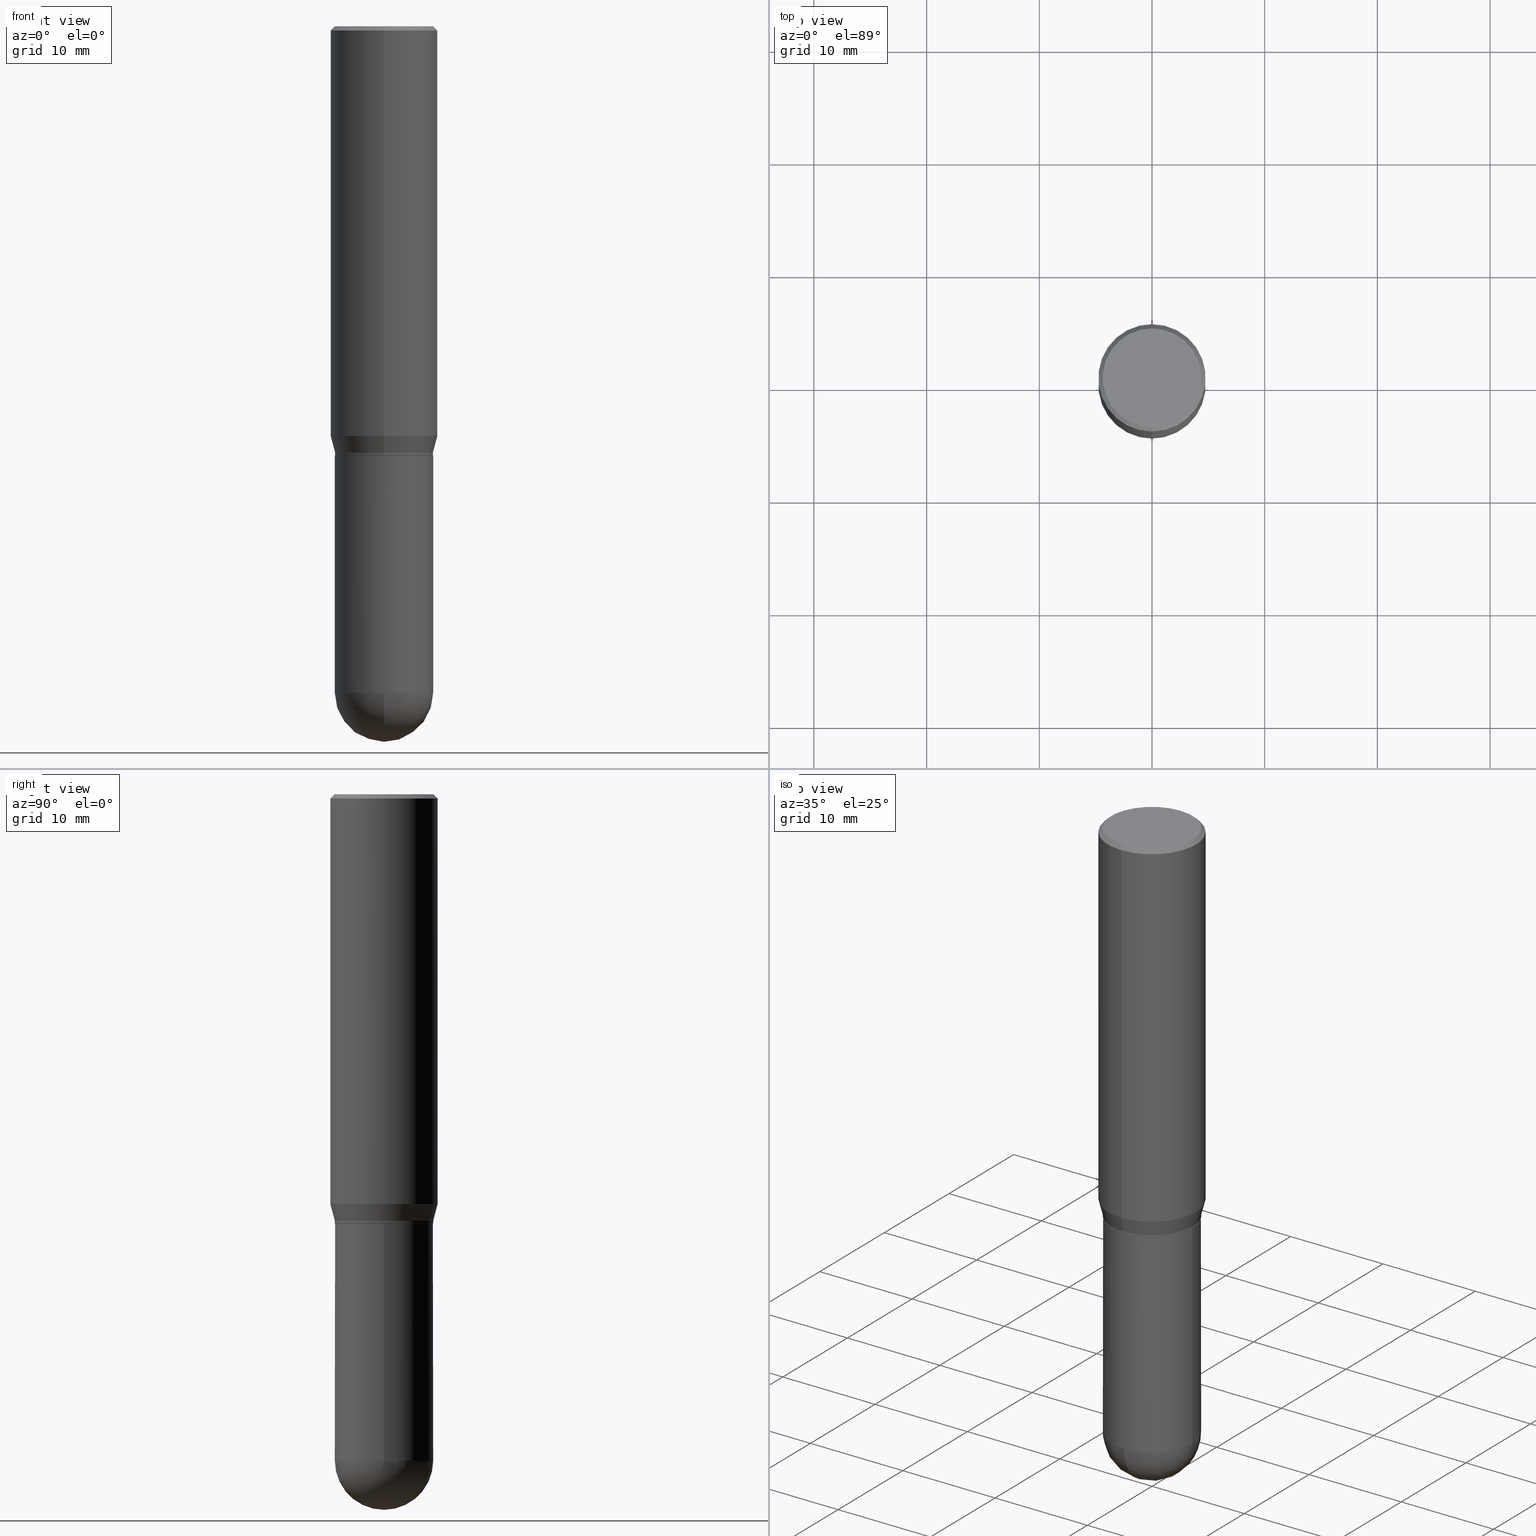
[diagram: canonical four-view strip — front | top / right | iso, engineering-drawing reading convention]
A machine part, canonical four-view strip (front | top / right | iso — engineering-drawing reading convention). The complete STEP part file that produces these views, byte-faithful:
ISO-10303-21;
HEADER;
FILE_DESCRIPTION (( 'STEP AP203' ),
    '1' );
FILE_NAME ('30492.STEP',
    '2024-03-08T15:26:57',
    ( '' ),
    ( '' ),
    'SwSTEP 2.0',
    'SolidWorks 2023',
    '' );
FILE_SCHEMA (( 'CONFIG_CONTROL_DESIGN' ));
ENDSEC;

DATA;
#1 = VERTEX_POINT ( 'NONE', #314 ) ;
#2 = CARTESIAN_POINT ( 'NONE',  ( 3.668027883406983202E-29, -5.237473084890521609E-15, -1.500000000000000222 ) ) ;
#3 = EDGE_CURVE ( 'NONE', #279, #236, #500, .T. ) ;
#4 = ORIENTED_EDGE ( 'NONE', *, *, #255, .T. ) ;
#5 = DIRECTION ( 'NONE',  ( -2.445351922271321948E-29, 3.491648723260347214E-15, 1.000000000000000000 ) ) ;
#6 = EDGE_LOOP ( 'NONE', ( #80, #427 ) ) ;
#7 = DIRECTION ( 'NONE',  ( -6.982962677686265922E-15, -1.000000000000000000, 3.178415350394723646E-15 ) ) ;
#8 = VECTOR ( 'NONE', #450, 39.37007874015748143 ) ;
#9 = ORIENTED_EDGE ( 'NONE', *, *, #419, .T. ) ;
#10 = CARTESIAN_POINT ( 'NONE',  ( 1.332267629550187651E-15, 0.1875000000000000278, -6.546841356113152012E-16 ) ) ;
#11 = DIRECTION ( 'NONE',  ( 6.982962677686266711E-15, 1.000000000000000000, 0.000000000000000000 ) ) ;
#12 = EDGE_LOOP ( 'NONE', ( #224, #335 ) ) ;
#13 = EDGE_CURVE ( 'NONE', #129, #71, #15, .T. ) ;
#14 = DIRECTION ( 'NONE',  ( 2.445351922271321948E-29, -3.491648723260347214E-15, -1.000000000000000000 ) ) ;
#15 = CIRCLE ( 'NONE', #289, 0.1718999999999998862 ) ;
#16 = AXIS2_PLACEMENT_3D ( 'NONE', #444, #405, #53 ) ;
#17 = DIRECTION ( 'NONE',  ( -2.445351922271321948E-29, 3.491648723260347608E-15, 1.000000000000000000 ) ) ;
#18 = LOCAL_TIME ( 10, 26, 57.00000000000000000, #372 ) ;
#19 = EDGE_CURVE ( 'NONE', #459, #285, #353, .T. ) ;
#20 = DIRECTION ( 'NONE',  ( 1.000000000000000000, -6.982962677686265922E-15, 4.876176775795935793E-29 ) ) ;
#21 = CARTESIAN_POINT ( 'NONE',  ( 3.668027883406999037E-31, -5.237473084890543500E-17, -0.01500000000000006710 ) ) ;
#22 = APPROVAL_PERSON_ORGANIZATION ( #466, #88, #62 ) ;
#23 = PERSON_AND_ORGANIZATION ( #347, #447 ) ;
#24 = EDGE_CURVE ( 'NONE', #396, #109, #495, .T. ) ;
#25 = PRODUCT ( '30492', '30492', '', ( #334 ) ) ;
#26 = PERSON_AND_ORGANIZATION ( #347, #447 ) ;
#27 = CARTESIAN_POINT ( 'NONE',  ( 5.693295927679617284E-29, -8.128517704960729139E-15, -2.328100000000000058 ) ) ;
#28 = ORIENTED_EDGE ( 'NONE', *, *, #419, .F. ) ;
#29 = DATE_TIME_ROLE ( 'classification_date' ) ;
#30 = CARTESIAN_POINT ( 'NONE',  ( 0.000000000000000000, 0.000000000000000000, 0.000000000000000000 ) ) ;
#31 = AXIS2_PLACEMENT_3D ( 'NONE', #60, #453, #290 ) ;
#32 = PERSON_AND_ORGANIZATION ( #347, #447 ) ;
#33 = ORIENTED_EDGE ( 'NONE', *, *, #398, .F. ) ;
#34 = CC_DESIGN_PERSON_AND_ORGANIZATION_ASSIGNMENT ( #428, #424, ( #355 ) ) ;
#35 = CARTESIAN_POINT ( 'NONE',  ( 1.200371284294326039E-15, 0.1718999999999918094, -2.328100000000000946 ) ) ;
#36 = CARTESIAN_POINT ( 'NONE',  ( -1.309305502066140101E-15, -0.1875000000000049960, -1.431780007401924903 ) ) ;
#37 = DIRECTION ( 'NONE',  ( -6.982962677686265922E-15, -1.000000000000000000, 3.178415350394723646E-15 ) ) ;
#38 = VECTOR ( 'NONE', #505, 39.37007874015748854 ) ;
#39 = ORIENTED_EDGE ( 'NONE', *, *, #142, .T. ) ;
#40 = FACE_OUTER_BOUND ( 'NONE', #512, .T. ) ;
#41 = EDGE_CURVE ( 'NONE', #71, #129, #327, .T. ) ;
#42 = EDGE_LOOP ( 'NONE', ( #426, #477, #393, #272 ) ) ;
#43 = ORIENTED_EDGE ( 'NONE', *, *, #24, .T. ) ;
#44 = FACE_OUTER_BOUND ( 'NONE', #482, .T. ) ;
#45 = CARTESIAN_POINT ( 'NONE',  ( 1.309305502066175600E-15, 0.1874999999999999445, -0.01500000000000072109 ) ) ;
#46 = ORIENTED_EDGE ( 'NONE', *, *, #409, .T. ) ;
#47 = CARTESIAN_POINT ( 'NONE',  ( 1.221422962771647501E-15, 0.1718999999999946682, -1.499500000000000721 ) ) ;
#48 = EDGE_LOOP ( 'NONE', ( #74, #89, #386, #9, #310 ) ) ;
#49 = EDGE_LOOP ( 'NONE', ( #399, #344, #511, #274 ) ) ;
#50 = CIRCLE ( 'NONE', #144, 0.1718999999999999140 ) ;
#51 = CYLINDRICAL_SURFACE ( 'NONE', #341, 0.1718999999999998862 ) ;
#52 = CARTESIAN_POINT ( 'NONE',  ( -1.196879802955389158E-15, -0.1714000000000052149, -1.499999999999999556 ) ) ;
#53 = DIRECTION ( 'NONE',  ( -6.982962677686265922E-15, -1.000000000000000000, 3.491648723260346819E-15 ) ) ;
#54 = DIRECTION ( 'NONE',  ( -2.445351922271321948E-29, 3.491648723260347608E-15, 1.000000000000000000 ) ) ;
#55 = ADVANCED_FACE ( 'NONE', ( #78 ), #436, .F. ) ;
#56 = CARTESIAN_POINT ( 'NONE',  ( -1.309305502066175008E-15, -0.1875000000000000278, 6.546841356113152012E-16 ) ) ;
#57 = MANIFOLD_SOLID_BREP ( 'Body-Move/Copy2[1]', #411 ) ;
#58 = AXIS2_PLACEMENT_3D ( 'NONE', #233, #273, #11 ) ;
#59 = ADVANCED_FACE ( 'NONE', ( #44 ), #280, .T. ) ;
#60 = CARTESIAN_POINT ( 'NONE',  ( 3.668027883406983202E-29, -5.237473084890521609E-15, -1.500000000000000222 ) ) ;
#61 = CARTESIAN_POINT ( 'NONE',  ( 0.1719000000000000250, -7.883241140906993293E-15, -2.328100000000000058 ) ) ;
#62 = APPROVAL_ROLE ( '' ) ;
#63 = APPROVAL_DATE_TIME ( #297, #154 ) ;
#64 = EDGE_CURVE ( 'NONE', #316, #346, #70, .T. ) ;
#65 = LINE ( 'NONE', #363, #77 ) ;
#66 = AXIS2_PLACEMENT_3D ( 'NONE', #360, #387, #379 ) ;
#67 = APPROVAL_STATUS ( 'not_yet_approved' ) ;
#68 = APPROVAL_ROLE ( '' ) ;
#69 = CLOSED_SHELL ( 'NONE', ( #506, #76, #263, #128, #98, #213, #337, #202, #110, #288, #322, #59 ) ) ;
#70 = CIRCLE ( 'NONE', #391, 0.1713999999999999690 ) ;
#71 = VERTEX_POINT ( 'NONE', #349 ) ;
#72 = EDGE_CURVE ( 'NONE', #236, #277, #79, .T. ) ;
#73 = DIRECTION ( 'NONE',  ( -2.445351922271321948E-29, 3.491648723260347214E-15, 1.000000000000000000 ) ) ;
#74 = ORIENTED_EDGE ( 'NONE', *, *, #104, .F. ) ;
#75 = DIRECTION ( 'NONE',  ( -6.982962677686265922E-15, -1.000000000000000000, 3.494488891895536035E-15 ) ) ;
#76 = ADVANCED_FACE ( 'NONE', ( #40 ), #508, .T. ) ;
#77 = VECTOR ( 'NONE', #17, 39.37007874015748143 ) ;
#78 = FACE_OUTER_BOUND ( 'NONE', #12, .T. ) ;
#79 = LINE ( 'NONE', #45, #479 ) ;
#80 = ORIENTED_EDGE ( 'NONE', *, *, #188, .T. ) ;
#81 = ORIENTED_EDGE ( 'NONE', *, *, #196, .F. ) ;
#82 = VERTEX_POINT ( 'NONE', #35 ) ;
#83 = ORIENTED_EDGE ( 'NONE', *, *, #3, .F. ) ;
#84 = DIRECTION ( 'NONE',  ( -6.982962677686265922E-15, -1.000000000000000000, 3.491648723260347608E-15 ) ) ;
#85 = DIRECTION ( 'NONE',  ( -6.982962677686265922E-15, -1.000000000000000000, 3.178415350394723252E-15 ) ) ;
#86 = DIRECTION ( 'NONE',  ( -2.445351922271321948E-29, 3.491648723260347608E-15, 1.000000000000000000 ) ) ;
#87 = ORIENTED_EDGE ( 'NONE', *, *, #188, .F. ) ;
#88 = APPROVAL ( #67, 'UNSPECIFIED' ) ;
#89 = ORIENTED_EDGE ( 'NONE', *, *, #284, .T. ) ;
#90 = AXIS2_PLACEMENT_3D ( 'NONE', #397, #235, #356 ) ;
#91 = DIRECTION ( 'NONE',  ( -2.445351922271321948E-29, 3.491648723260347214E-15, 1.000000000000000000 ) ) ;
#92 = LINE ( 'NONE', #485, #509 ) ;
#93 = EDGE_CURVE ( 'NONE', #129, #195, #303, .T. ) ;
#94 = DIRECTION ( 'NONE',  ( -2.445351922271321948E-29, 3.491648723260347214E-15, 1.000000000000000000 ) ) ;
#95 = LENGTH_MEASURE_WITH_UNIT ( LENGTH_MEASURE( 0.02539999999999999897 ), #281 );
#96 = AXIS2_PLACEMENT_3D ( 'NONE', #454, #245, #420 ) ;
#97 = DIRECTION ( 'NONE',  ( 6.982962677686265922E-15, 1.000000000000000000, -3.494488891895536035E-15 ) ) ;
#98 = ADVANCED_FACE ( 'NONE', ( #112 ), #261, .T. ) ;
#99 = PERSON_AND_ORGANIZATION_ROLE ( 'design_owner' ) ;
#100 = CIRCLE ( 'NONE', #58, 0.1718999999999999417 ) ;
#101 = EDGE_LOOP ( 'NONE', ( #146, #46, #228, #492 ) ) ;
#102 = APPROVAL_DATE_TIME ( #179, #88 ) ;
#103 = EDGE_LOOP ( 'NONE', ( #238, #87, #197, #432 ) ) ;
#104 = EDGE_CURVE ( 'NONE', #443, #137, #116, .T. ) ;
#105 = DIRECTION ( 'NONE',  ( -2.445468806185136597E-29, 3.491481338843145583E-15, 1.000000000000000000 ) ) ;
#106 = AXIS2_PLACEMENT_3D ( 'NONE', #230, #357, #268 ) ;
#107 = AXIS2_PLACEMENT_3D ( 'NONE', #177, #247, #168 ) ;
#108 = FACE_OUTER_BOUND ( 'NONE', #390, .T. ) ;
#109 = VERTEX_POINT ( 'NONE', #510 ) ;
#110 = ADVANCED_FACE ( 'NONE', ( #338 ), #345, .F. ) ;
#111 = DIRECTION ( 'NONE',  ( -2.445351922271321948E-29, 3.491648723260347214E-15, 1.000000000000000000 ) ) ;
#112 = FACE_OUTER_BOUND ( 'NONE', #191, .T. ) ;
#113 = ORIENTED_EDGE ( 'NONE', *, *, #104, .T. ) ;
#114 = ORIENTED_EDGE ( 'NONE', *, *, #227, .F. ) ;
#115 = ORIENTED_EDGE ( 'NONE', *, *, #255, .F. ) ;
#116 = LINE ( 'NONE', #434, #174 ) ;
#117 = APPROVAL_PERSON_ORGANIZATION ( #499, #154, #68 ) ;
#118 = ORIENTED_EDGE ( 'NONE', *, *, #123, .T. ) ;
#119 = CARTESIAN_POINT ( 'NONE',  ( 3.643574364184270459E-29, -5.202556597657919005E-15, -1.490000000000000213 ) ) ;
#120 = DIRECTION ( 'NONE',  ( 6.982962677686265922E-15, 1.000000000000000000, -3.178415350394722463E-15 ) ) ;
#121 = DIRECTION ( 'NONE',  ( -2.445351922271321387E-29, 3.491648723260347608E-15, 1.000000000000000000 ) ) ;
#122 = DIRECTION ( 'NONE',  ( -2.445351922271321948E-29, 3.491648723260347214E-15, 1.000000000000000000 ) ) ;
#123 = EDGE_CURVE ( 'NONE', #82, #443, #413, .T. ) ;
#124 = DIRECTION ( 'NONE',  ( -4.851104656540965064E-15, -0.7071067811865501263, -0.7071067811865449082 ) ) ;
#125 = CARTESIAN_POINT ( 'NONE',  ( -1.200371284294231968E-15, -0.1719000000000050765, -1.489999999999999769 ) ) ;
#126 = DIRECTION ( 'NONE',  ( 2.438088387897960049E-29, -3.491481338843145188E-15, -1.000000000000000000 ) ) ;
#127 = DIRECTION ( 'NONE',  ( -2.445468806185136597E-29, 3.491481338843145583E-15, 1.000000000000000000 ) ) ;
#128 = ADVANCED_FACE ( 'NONE', ( #150 ), #486, .T. ) ;
#129 = VERTEX_POINT ( 'NONE', #241 ) ;
#130 = FACE_OUTER_BOUND ( 'NONE', #49, .T. ) ;
#131 = AXIS2_PLACEMENT_3D ( 'NONE', #407, #91, #326 ) ;
#132 = CIRCLE ( 'NONE', #331, 0.1875000000000000278 ) ;
#133 = APPROVAL_DATE_TIME ( #425, #135 ) ;
#134 = CARTESIAN_POINT ( 'NONE',  ( 1.332267629550222558E-15, 0.1874999999999950318, -1.431780007401926014 ) ) ;
#135 = APPROVAL ( #293, 'UNSPECIFIED' ) ;
#136 = PERSON_AND_ORGANIZATION_ROLE ( 'creator' ) ;
#137 = VERTEX_POINT ( 'NONE', #452 ) ;
#138 = CALENDAR_DATE ( 2024, 8, 3 ) ;
#139 = AXIS2_PLACEMENT_3D ( 'NONE', #324, #249, #171 ) ;
#140 = CC_DESIGN_APPROVAL ( #88, ( #237 ) ) ;
#141 = CALENDAR_DATE ( 2024, 8, 3 ) ;
#142 = EDGE_CURVE ( 'NONE', #396, #129, #65, .T. ) ;
#143 = DIRECTION ( 'NONE',  ( 1.000000000000000000, -6.982962677686271444E-15, 0.000000000000000000 ) ) ;
#144 = AXIS2_PLACEMENT_3D ( 'NONE', #287, #328, #458 ) ;
#145 = AXIS2_PLACEMENT_3D ( 'NONE', #239, #127, #286 ) ;
#146 = ORIENTED_EDGE ( 'NONE', *, *, #398, .T. ) ;
#147 = ORIENTED_EDGE ( 'NONE', *, *, #64, .F. ) ;
#148 = CARTESIAN_POINT ( 'NONE',  ( 1.204561061900881047E-15, 0.1725000000000000144, -6.358629840937984976E-16 ) ) ;
#149 = DIRECTION ( 'NONE',  ( -2.445351922271321948E-29, 3.491648723260347214E-15, 1.000000000000000000 ) ) ;
#150 = FACE_OUTER_BOUND ( 'NONE', #101, .T. ) ;
#151 = DESIGN_CONTEXT ( 'detailed design', #465, 'design' ) ;
#152 = AXIS2_PLACEMENT_3D ( 'NONE', #307, #149, #75 ) ;
#153 = LOCAL_TIME ( 10, 26, 57.00000000000000000, #462 ) ;
#154 = APPROVAL ( #254, 'UNSPECIFIED' ) ;
#155 = UNCERTAINTY_MEASURE_WITH_UNIT (LENGTH_MEASURE( 1.000000000000000082E-05 ), #490, 'distance_accuracy_value', 'NONE');
#156 = EDGE_LOOP ( 'NONE', ( #400, #4, #423, #193 ) ) ;
#157 = ORIENTED_EDGE ( 'NONE', *, *, #317, .F. ) ;
#158 = CARTESIAN_POINT ( 'NONE',  ( 5.678595619168622984E-29, -8.149569383438070914E-15, -2.328100000000000058 ) ) ;
#159 = CARTESIAN_POINT ( 'NONE',  ( -1.309305502066174614E-15, -0.1875000000000000833, -0.01499999999999941137 ) ) ;
#160 = FACE_OUTER_BOUND ( 'NONE', #42, .T. ) ;
#161 = ORIENTED_EDGE ( 'NONE', *, *, #64, .T. ) ;
#162 = CARTESIAN_POINT ( 'NONE',  ( -1.196879802955389158E-15, -0.1714000000000052149, -1.499999999999999556 ) ) ;
#163 = ORIENTED_EDGE ( 'NONE', *, *, #342, .T. ) ;
#164 = DIRECTION ( 'NONE',  ( 1.000000000000000000, -6.982962677686265922E-15, 4.876176775795935793E-29 ) ) ;
#165 = AXIS2_PLACEMENT_3D ( 'NONE', #176, #389, #120 ) ;
#166 = DIRECTION ( 'NONE',  ( -2.445468806185136597E-29, 3.491481338843145583E-15, 1.000000000000000000 ) ) ;
#167 = CC_DESIGN_SECURITY_CLASSIFICATION ( #237, ( #355 ) ) ;
#168 = DIRECTION ( 'NONE',  ( 6.982962677686265922E-15, 1.000000000000000000, -3.178415350394722463E-15 ) ) ;
#169 = ORIENTED_EDGE ( 'NONE', *, *, #41, .F. ) ;
#170 = APPLICATION_PROTOCOL_DEFINITION ( 'international standard', 'config_control_design', 1994, #378 ) ;
#171 = DIRECTION ( 'NONE',  ( -6.982962677686265922E-15, -1.000000000000000000, 3.178415350394723646E-15 ) ) ;
#172 = CARTESIAN_POINT ( 'NONE',  ( 5.693295927679617284E-29, -8.128517704960729139E-15, -2.328100000000000058 ) ) ;
#173 = DIRECTION ( 'NONE',  ( 2.445351922271321948E-29, -3.491648723260347214E-15, -1.000000000000000000 ) ) ;
#174 = VECTOR ( 'NONE', #385, 39.37007874015748143 ) ;
#175 = CC_DESIGN_PERSON_AND_ORGANIZATION_ASSIGNMENT ( #217, #294, ( #237 ) ) ;
#176 = CARTESIAN_POINT ( 'NONE',  ( 5.678595619168622984E-29, -8.149569383438070914E-15, -2.328100000000000058 ) ) ;
#177 = CARTESIAN_POINT ( 'NONE',  ( 5.678595619168622984E-29, -8.149569383438070914E-15, -2.328100000000000058 ) ) ;
#178 = DATE_AND_TIME ( #417, #438 ) ;
#179 = DATE_AND_TIME ( #212, #257 ) ;
#180 = CARTESIAN_POINT ( 'NONE',  ( 1.219646605932247841E-15, 0.1713999999999947510, -1.500000000000000666 ) ) ;
#181 = DIRECTION ( 'NONE',  ( -2.445468806185136597E-29, 3.491481338843145583E-15, 1.000000000000000000 ) ) ;
#182 = ADVANCED_FACE ( 'NONE', ( #130 ), #250, .T. ) ;
#183 = CIRCLE ( 'NONE', #152, 0.1875000000000000278 ) ;
#184 = CARTESIAN_POINT ( 'NONE',  ( -1.286343374582161576E-15, -0.1875000000000000833, -0.01499999999999941137 ) ) ;
#185 = EDGE_LOOP ( 'NONE', ( #118, #113, #473, #28, #441 ) ) ;
#186 = ORIENTED_EDGE ( 'NONE', *, *, #317, .T. ) ;
#187 = CARTESIAN_POINT ( 'NONE',  ( 5.693295927679617284E-29, -8.128517704960729139E-15, -2.328100000000000058 ) ) ;
#188 = EDGE_CURVE ( 'NONE', #236, #279, #256, .T. ) ;
#189 = AXIS2_PLACEMENT_3D ( 'NONE', #264, #73, #301 ) ;
#190 = AXIS2_PLACEMENT_3D ( 'NONE', #323, #442, #240 ) ;
#191 = EDGE_LOOP ( 'NONE', ( #252, #474, #33, #291 ) ) ;
#192 = DIRECTION ( 'NONE',  ( -6.982962677686266711E-15, -1.000000000000000000, 3.187687273820611169E-15 ) ) ;
#193 = ORIENTED_EDGE ( 'NONE', *, *, #24, .F. ) ;
#194 = ORIENTED_EDGE ( 'NONE', *, *, #409, .F. ) ;
#195 = VERTEX_POINT ( 'NONE', #134 ) ;
#196 = EDGE_CURVE ( 'NONE', #109, #71, #412, .T. ) ;
#197 = ORIENTED_EDGE ( 'NONE', *, *, #72, .T. ) ;
#198 = LINE ( 'NONE', #125, #282 ) ;
#199 = DIRECTION ( 'NONE',  ( -6.982962677686266711E-15, -1.000000000000000000, 3.491648723260346425E-15 ) ) ;
#200 = DIRECTION ( 'NONE',  ( -2.445468806185136597E-29, 3.491481338843145583E-15, 1.000000000000000000 ) ) ;
#201 = CARTESIAN_POINT ( 'NONE',  ( 3.668027883406983202E-29, -5.237473084890521609E-15, -1.500000000000000222 ) ) ;
#202 = ADVANCED_FACE ( 'NONE', ( #205 ), #366, .T. ) ;
#203 = DIRECTION ( 'NONE',  ( -6.982962677686265922E-15, -1.000000000000000000, 3.491648723260346819E-15 ) ) ;
#204 = AXIS2_PLACEMENT_3D ( 'NONE', #219, #464, #384 ) ;
#205 = FACE_OUTER_BOUND ( 'NONE', #103, .T. ) ;
#206 = LINE ( 'NONE', #10, #414 ) ;
#207 = CC_DESIGN_PERSON_AND_ORGANIZATION_ASSIGNMENT ( #23, #136, ( #355 ) ) ;
#208 = APPLICATION_PROTOCOL_DEFINITION ( 'international standard', 'config_control_design', 1994, #465 ) ;
#209 = PERSON_AND_ORGANIZATION_ROLE ( 'creator' ) ;
#210 = AXIS2_PLACEMENT_3D ( 'NONE', #2, #121, #84 ) ;
#211 = ORIENTED_EDGE ( 'NONE', *, *, #494, .T. ) ;
#212 = CALENDAR_DATE ( 2024, 8, 3 ) ;
#213 = ADVANCED_FACE ( 'NONE', ( #214 ), #402, .T. ) ;
#214 = FACE_OUTER_BOUND ( 'NONE', #315, .T. ) ;
#215 = COORDINATED_UNIVERSAL_TIME_OFFSET ( 5, 0, .BEHIND. ) ;
#216 = CYLINDRICAL_SURFACE ( 'NONE', #501, 0.1875000000000000278 ) ;
#217 = PERSON_AND_ORGANIZATION ( #347, #447 ) ;
#218 = AXIS2_PLACEMENT_3D ( 'NONE', #481, #472, #192 ) ;
#219 = CARTESIAN_POINT ( 'NONE',  ( 3.668027883406983202E-29, -5.237473084890521609E-15, -1.500000000000000222 ) ) ;
#220 = CIRCLE ( 'NONE', #145, 0.1718999999999999695 ) ;
#221 = DIRECTION ( 'NONE',  ( 4.937700262164548831E-15, 0.7071067811865452413, -0.7071067811865497932 ) ) ;
#222 = MANIFOLD_SOLID_BREP ( 'Body-Move/Copy2[2]', #69 ) ;
#223 = EDGE_CURVE ( 'NONE', #483, #82, #244, .T. ) ;
#224 = ORIENTED_EDGE ( 'NONE', *, *, #470, .T. ) ;
#225 = AXIS2_PLACEMENT_3D ( 'NONE', #408, #166, #164 ) ;
#226 = CARTESIAN_POINT ( 'NONE',  ( 1.641006194341885501E-45, -2.343146248665151723E-31, -6.710715866277708066E-17 ) ) ;
#227 = EDGE_CURVE ( 'NONE', #109, #396, #50, .T. ) ;
#228 = ORIENTED_EDGE ( 'NONE', *, *, #342, .F. ) ;
#229 = ORIENTED_EDGE ( 'NONE', *, *, #142, .F. ) ;
#230 = CARTESIAN_POINT ( 'NONE',  ( 3.643574364184270459E-29, -5.202556597657919005E-15, -1.490000000000000213 ) ) ;
#231 = CYLINDRICAL_SURFACE ( 'NONE', #225, 0.1719000000000000250 ) ;
#232 = AXIS2_PLACEMENT_3D ( 'NONE', #484, #126, #394 ) ;
#233 = CARTESIAN_POINT ( 'NONE',  ( 5.678595619168622984E-29, -8.149569383438070914E-15, -2.328100000000000058 ) ) ;
#234 = AXIS2_PLACEMENT_3D ( 'NONE', #361, #14, #97 ) ;
#235 = DIRECTION ( 'NONE',  ( -2.445468806185136597E-29, 3.491481338843145583E-15, 1.000000000000000000 ) ) ;
#236 = VERTEX_POINT ( 'NONE', #422 ) ;
#237 = SECURITY_CLASSIFICATION ( '', '', #296 ) ;
#238 = ORIENTED_EDGE ( 'NONE', *, *, #359, .F. ) ;
#239 = CARTESIAN_POINT ( 'NONE',  ( 3.668203209277704895E-29, -5.237222008264718177E-15, -1.500000000000000222 ) ) ;
#240 = DIRECTION ( 'NONE',  ( 1.000000000000000000, -6.982962677686268288E-15, 0.000000000000000000 ) ) ;
#241 = CARTESIAN_POINT ( 'NONE',  ( 1.276845296160934931E-15, 0.1718999999999946959, -1.490000000000000879 ) ) ;
#242 = DIRECTION ( 'NONE',  ( -2.445351922271321948E-29, 3.491648723260347214E-15, 1.000000000000000000 ) ) ;
#243 = DIRECTION ( 'NONE',  ( -6.982962677686266711E-15, -1.000000000000000000, 3.491648723260346425E-15 ) ) ;
#244 = CIRCLE ( 'NONE', #364, 0.1719000000000000250 ) ;
#245 = DIRECTION ( 'NONE',  ( 0.000000000000000000, 0.000000000000000000, 1.000000000000000000 ) ) ;
#246 = CARTESIAN_POINT ( 'NONE',  ( 3.501205993369945932E-29, -4.999272834834623163E-15, -1.431780007401925348 ) ) ;
#247 = DIRECTION ( 'NONE',  ( -1.000000000000000000, 6.982962677686265922E-15, -4.883557194083112340E-29 ) ) ;
#248 = PRODUCT_DEFINITION ( 'UNKNOWN', '', #355, #151 ) ;
#249 = DIRECTION ( 'NONE',  ( -2.445351922271321948E-29, 3.491648723260347214E-15, 1.000000000000000000 ) ) ;
#250 = SPHERICAL_SURFACE ( 'NONE', #107, 0.1718999999999999417 ) ;
#251 = CALENDAR_DATE ( 2024, 8, 3 ) ;
#252 = ORIENTED_EDGE ( 'NONE', *, *, #41, .T. ) ;
#253 = DIMENSIONAL_EXPONENTS ( 1.000000000000000000, 0.000000000000000000, 0.000000000000000000, 0.000000000000000000, 0.000000000000000000, 0.000000000000000000, 0.000000000000000000 ) ;
#254 = APPROVAL_STATUS ( 'not_yet_approved' ) ;
#255 = EDGE_CURVE ( 'NONE', #346, #316, #330, .T. ) ;
#256 = CIRCLE ( 'NONE', #320, 0.1725000000000000144 ) ;
#257 = LOCAL_TIME ( 10, 26, 57.00000000000000000, #503 ) ;
#258 = ORIENTED_EDGE ( 'NONE', *, *, #13, .T. ) ;
#259 = FACE_OUTER_BOUND ( 'NONE', #156, .T. ) ;
#260 = AXIS2_PLACEMENT_3D ( 'NONE', #265, #471, #85 ) ;
#261 = CONICAL_SURFACE ( 'NONE', #371, 0.1718999999999998862, 0.2617993877991499629 ) ;
#262 = CC_DESIGN_APPROVAL ( #154, ( #248 ) ) ;
#263 = ADVANCED_FACE ( 'NONE', ( #370 ), #382, .T. ) ;
#264 = CARTESIAN_POINT ( 'NONE',  ( 3.668027883406999037E-31, -5.237473084890543500E-17, -0.01500000000000006710 ) ) ;
#265 = CARTESIAN_POINT ( 'NONE',  ( 3.666805207445848322E-29, -5.235727260528891085E-15, -1.499500000000000277 ) ) ;
#266 = EDGE_LOOP ( 'NONE', ( #435, #39, #169, #81 ) ) ;
#267 = ORIENTED_EDGE ( 'NONE', *, *, #308, .T. ) ;
#268 = DIRECTION ( 'NONE',  ( -6.982962677686265922E-15, -1.000000000000000000, 3.178415350394723646E-15 ) ) ;
#269 = EDGE_CURVE ( 'NONE', #316, #109, #507, .T. ) ;
#270 = DIRECTION ( 'NONE',  ( 2.445351922271321387E-29, -3.491648723260347608E-15, -1.000000000000000000 ) ) ;
#271 = CIRCLE ( 'NONE', #189, 0.1875000000000000278 ) ;
#272 = ORIENTED_EDGE ( 'NONE', *, *, #440, .F. ) ;
#273 = DIRECTION ( 'NONE',  ( 1.000000000000000000, -6.982962677686265922E-15, 4.883557194083112340E-29 ) ) ;
#274 = ORIENTED_EDGE ( 'NONE', *, *, #123, .F. ) ;
#275 = DIRECTION ( 'NONE',  ( -1.000000000000000000, 7.105427357601001070E-15, -4.926315508542082329E-29 ) ) ;
#276 = DIRECTION ( 'NONE',  ( 5.024295867788231995E-15, 0.7071067811865739960, 0.7071067811865208164 ) ) ;
#277 = VERTEX_POINT ( 'NONE', #318 ) ;
#278 = DIRECTION ( 'NONE',  ( -1.807323732225328167E-15, -0.2588190451025179084, 0.9659258262890690894 ) ) ;
#279 = VERTEX_POINT ( 'NONE', #448 ) ;
#280 = CYLINDRICAL_SURFACE ( 'NONE', #16, 0.1718999999999998862 ) ;
#281 =( LENGTH_UNIT ( ) NAMED_UNIT ( * ) SI_UNIT ( $, .METRE. ) );
#282 = VECTOR ( 'NONE', #278, 39.37007874015748143 ) ;
#283 = PLANE ( 'NONE',  #210 ) ;
#284 = EDGE_CURVE ( 'NONE', #443, #285, #437, .T. ) ;
#285 = VERTEX_POINT ( 'NONE', #476 ) ;
#286 = DIRECTION ( 'NONE',  ( 1.000000000000000000, -6.982962677686268288E-15, 0.000000000000000000 ) ) ;
#287 = CARTESIAN_POINT ( 'NONE',  ( 3.666805207445848322E-29, -5.235727260528891085E-15, -1.499500000000000277 ) ) ;
#288 = ADVANCED_FACE ( 'NONE', ( #313 ), #283, .F. ) ;
#289 = AXIS2_PLACEMENT_3D ( 'NONE', #352, #5, #7 ) ;
#290 = DIRECTION ( 'NONE',  ( -6.982962677686266711E-15, -1.000000000000000000, 3.187687273820611169E-15 ) ) ;
#291 = ORIENTED_EDGE ( 'NONE', *, *, #308, .F. ) ;
#292 = AXIS2_PLACEMENT_3D ( 'NONE', #172, #200, #415 ) ;
#293 = APPROVAL_STATUS ( 'not_yet_approved' ) ;
#294 = PERSON_AND_ORGANIZATION_ROLE ( 'classification_officer' ) ;
#295 = PRODUCT_RELATED_PRODUCT_CATEGORY ( 'detail', '', ( #25 ) ) ;
#296 = SECURITY_CLASSIFICATION_LEVEL ( 'unclassified' ) ;
#297 = DATE_AND_TIME ( #251, #18 ) ;
#298 = LOCAL_TIME ( 10, 26, 57.00000000000000000, #375 ) ;
#299 = DIRECTION ( 'NONE',  ( -2.445351922271321948E-29, 3.491648723260347214E-15, 1.000000000000000000 ) ) ;
#300 = APPROVAL_ROLE ( '' ) ;
#301 = DIRECTION ( 'NONE',  ( -6.982962677686265922E-15, -1.000000000000000000, 3.494488891895536035E-15 ) ) ;
#302 = CC_DESIGN_PERSON_AND_ORGANIZATION_ASSIGNMENT ( #332, #99, ( #25 ) ) ;
#303 = LINE ( 'NONE', #430, #38 ) ;
#304 = ORIENTED_EDGE ( 'NONE', *, *, #359, .T. ) ;
#305 = AXIS2_PLACEMENT_3D ( 'NONE', #21, #173, #504 ) ;
#306 = DIRECTION ( 'NONE',  ( -6.982962677686266711E-15, -1.000000000000000000, 3.187687273820611169E-15 ) ) ;
#307 = CARTESIAN_POINT ( 'NONE',  ( 3.668027883406999037E-31, -5.237473084890543500E-17, -0.01500000000000006710 ) ) ;
#308 = EDGE_CURVE ( 'NONE', #71, #395, #198, .T. ) ;
#309 = ORIENTED_EDGE ( 'NONE', *, *, #269, .F. ) ;
#310 = ORIENTED_EDGE ( 'NONE', *, *, #463, .F. ) ;
#311 = ORIENTED_EDGE ( 'NONE', *, *, #72, .F. ) ;
#312 = VECTOR ( 'NONE', #496, 39.37007874015748143 ) ;
#313 = FACE_OUTER_BOUND ( 'NONE', #374, .T. ) ;
#314 = CARTESIAN_POINT ( 'NONE',  ( 0.1718999999999999695, -6.437593292558987418E-15, -1.500000000000000222 ) ) ;
#315 = EDGE_LOOP ( 'NONE', ( #329, #258, #267, #157 ) ) ;
#316 = VERTEX_POINT ( 'NONE', #52 ) ;
#317 = EDGE_CURVE ( 'NONE', #195, #395, #456, .T. ) ;
#318 = CARTESIAN_POINT ( 'NONE',  ( 1.332267629550222953E-15, 0.1874999999999999445, -0.01500000000000072109 ) ) ;
#319 = CARTESIAN_POINT ( 'NONE',  ( 0.000000000000000000, 0.000000000000000000, 0.000000000000000000 ) ) ;
#320 = AXIS2_PLACEMENT_3D ( 'NONE', #497, #94, #243 ) ;
#321 = CARTESIAN_POINT ( 'NONE',  ( 0.000000000000000000, 0.000000000000000000, 0.000000000000000000 ) ) ;
#322 = ADVANCED_FACE ( 'NONE', ( #259 ), #340, .T. ) ;
#323 = CARTESIAN_POINT ( 'NONE',  ( 3.668203209277704895E-29, -5.237222008264718177E-15, -1.500000000000000222 ) ) ;
#324 = CARTESIAN_POINT ( 'NONE',  ( 3.643574364184270459E-29, -5.202556597657919005E-15, -1.490000000000000213 ) ) ;
#325 = DIRECTION ( 'NONE',  ( -2.445468806185136597E-29, 3.491481338843145583E-15, 1.000000000000000000 ) ) ;
#326 = DIRECTION ( 'NONE',  ( -6.982962677686265922E-15, -1.000000000000000000, 3.491648723260347214E-15 ) ) ;
#327 = CIRCLE ( 'NONE', #106, 0.1718999999999998862 ) ;
#328 = DIRECTION ( 'NONE',  ( -2.445351922271321948E-29, 3.491648723260347214E-15, 1.000000000000000000 ) ) ;
#329 = ORIENTED_EDGE ( 'NONE', *, *, #93, .F. ) ;
#330 = CIRCLE ( 'NONE', #31, 0.1713999999999999690 ) ;
#331 = AXIS2_PLACEMENT_3D ( 'NONE', #246, #376, #362 ) ;
#332 = PERSON_AND_ORGANIZATION ( #347, #447 ) ;
#333 = DIRECTION ( 'NONE',  ( 1.000000000000000000, -6.982962677686271444E-15, 0.000000000000000000 ) ) ;
#334 = MECHANICAL_CONTEXT ( 'NONE', #378, 'mechanical' ) ;
#335 = ORIENTED_EDGE ( 'NONE', *, *, #463, .T. ) ;
#336 = AXIS2_PLACEMENT_3D ( 'NONE', #148, #270, #339 ) ;
#337 = ADVANCED_FACE ( 'NONE', ( #108 ), #216, .T. ) ;
#338 = FACE_OUTER_BOUND ( 'NONE', #6, .T. ) ;
#339 = DIRECTION ( 'NONE',  ( 6.982962677686265922E-15, 1.000000000000000000, -3.491648723260347608E-15 ) ) ;
#340 = CONICAL_SURFACE ( 'NONE', #204, 0.1713999999999999690, 0.7853981633974824739 ) ;
#341 = AXIS2_PLACEMENT_3D ( 'NONE', #321, #242, #203 ) ;
#342 = EDGE_CURVE ( 'NONE', #478, #277, #271, .T. ) ;
#343 = ORIENTED_EDGE ( 'NONE', *, *, #380, .F. ) ;
#344 = ORIENTED_EDGE ( 'NONE', *, *, #19, .T. ) ;
#345 = PLANE ( 'NONE',  #336 ) ;
#346 = VERTEX_POINT ( 'NONE', #180 ) ;
#347 = PERSON ( 'UNSPECIFIED', 'UNSPECIFIED', 'UNSPECIFIED', ('UNSPECIFIED'), ('UNSPECIFIED'), ('UNSPECIFIED') ) ;
#348 = DIRECTION ( 'NONE',  ( -7.105427357601001070E-15, -1.000000000000000000, 0.000000000000000000 ) ) ;
#349 = CARTESIAN_POINT ( 'NONE',  ( -1.200371284294231968E-15, -0.1719000000000050765, -1.489999999999999769 ) ) ;
#350 = DIRECTION ( 'NONE',  ( -4.937700262164715281E-15, -0.7071067811865691111, 0.7071067811865257013 ) ) ;
#351 = ORIENTED_EDGE ( 'NONE', *, *, #480, .T. ) ;
#352 = CARTESIAN_POINT ( 'NONE',  ( 3.643574364184270459E-29, -5.202556597657919005E-15, -1.490000000000000213 ) ) ;
#353 = CIRCLE ( 'NONE', #468, 0.1718999999999999417 ) ;
#354 = AXIS2_PLACEMENT_3D ( 'NONE', #187, #105, #143 ) ;
#355 = PRODUCT_DEFINITION_FORMATION_WITH_SPECIFIED_SOURCE ( 'ANY', '', #25, .NOT_KNOWN. ) ;
#356 = DIRECTION ( 'NONE',  ( 1.000000000000000000, -6.982962677686271444E-15, 0.000000000000000000 ) ) ;
#357 = DIRECTION ( 'NONE',  ( -2.445351922271321948E-29, 3.491648723260347214E-15, 1.000000000000000000 ) ) ;
#358 = FACE_OUTER_BOUND ( 'NONE', #185, .T. ) ;
#359 = EDGE_CURVE ( 'NONE', #279, #478, #467, .T. ) ;
#360 = CARTESIAN_POINT ( 'NONE',  ( 3.501205993369945932E-29, -4.999272834834623163E-15, -1.431780007401925348 ) ) ;
#361 = CARTESIAN_POINT ( 'NONE',  ( 3.668027883406999037E-31, -5.237473084890543500E-17, -0.01500000000000006710 ) ) ;
#362 = DIRECTION ( 'NONE',  ( -6.982962677686265922E-15, -1.000000000000000000, 2.913971193241880372E-15 ) ) ;
#363 = CARTESIAN_POINT ( 'NONE',  ( 1.221422962771611214E-15, 0.1718999999999998862, -6.002144155284532253E-16 ) ) ;
#364 = AXIS2_PLACEMENT_3D ( 'NONE', #27, #181, #333 ) ;
#365 = EDGE_CURVE ( 'NONE', #459, #82, #100, .T. ) ;
#366 = CONICAL_SURFACE ( 'NONE', #234, 0.1875000000000000278, 0.7853981633974485010 ) ;
#367 = VECTOR ( 'NONE', #54, 39.37007874015748143 ) ;
#368 =( NAMED_UNIT ( * ) PLANE_ANGLE_UNIT ( ) SI_UNIT ( $, .RADIAN. ) );
#369 = LINE ( 'NONE', #406, #8 ) ;
#370 = FACE_OUTER_BOUND ( 'NONE', #404, .T. ) ;
#371 = AXIS2_PLACEMENT_3D ( 'NONE', #119, #431, #37 ) ;
#372 = COORDINATED_UNIVERSAL_TIME_OFFSET ( 5, 0, .BEHIND. ) ;
#373 = ADVANCED_FACE ( 'NONE', ( #160 ), #418, .T. ) ;
#374 = EDGE_LOOP ( 'NONE', ( #147, #115 ) ) ;
#375 = COORDINATED_UNIVERSAL_TIME_OFFSET ( 5, 0, .BEHIND. ) ;
#376 = DIRECTION ( 'NONE',  ( -2.445351922271321948E-29, 3.491648723260347214E-15, 1.000000000000000000 ) ) ;
#377 = DIRECTION ( 'NONE',  ( -6.982962677686265922E-15, -1.000000000000000000, 3.491648723260347214E-15 ) ) ;
#378 = APPLICATION_CONTEXT ( 'configuration controlled 3d designs of mechanical parts and assemblies' ) ;
#379 = DIRECTION ( 'NONE',  ( -6.982962677686265922E-15, -1.000000000000000000, 2.913971193241880372E-15 ) ) ;
#380 = EDGE_CURVE ( 'NONE', #277, #478, #183, .T. ) ;
#381 = SHAPE_DEFINITION_REPRESENTATION ( #429, #421 ) ;
#382 = CONICAL_SURFACE ( 'NONE', #305, 0.1875000000000000278, 0.7853981633974485010 ) ;
#383 = APPROVAL_PERSON_ORGANIZATION ( #32, #135, #300 ) ;
#384 = DIRECTION ( 'NONE',  ( -6.982962677686266711E-15, -1.000000000000000000, 3.187687273820611169E-15 ) ) ;
#385 = DIRECTION ( 'NONE',  ( -2.445468806185136877E-29, 3.491481338843145188E-15, 1.000000000000000000 ) ) ;
#386 = ORIENTED_EDGE ( 'NONE', *, *, #440, .T. ) ;
#387 = DIRECTION ( 'NONE',  ( -2.445351922271321948E-29, 3.491648723260347214E-15, 1.000000000000000000 ) ) ;
#388 = CC_DESIGN_DATE_AND_TIME_ASSIGNMENT ( #178, #498, ( #248 ) ) ;
#389 = DIRECTION ( 'NONE',  ( -1.000000000000000000, 6.982962677686265922E-15, -4.883557194083112340E-29 ) ) ;
#390 = EDGE_LOOP ( 'NONE', ( #194, #186, #211, #343 ) ) ;
#391 = AXIS2_PLACEMENT_3D ( 'NONE', #201, #111, #306 ) ;
#392 = CIRCLE ( 'NONE', #292, 0.1719000000000000250 ) ;
#393 = ORIENTED_EDGE ( 'NONE', *, *, #223, .F. ) ;
#394 = DIRECTION ( 'NONE',  ( -1.000000000000000000, 6.982962677686265922E-15, -4.876176775795935793E-29 ) ) ;
#395 = VERTEX_POINT ( 'NONE', #36 ) ;
#396 = VERTEX_POINT ( 'NONE', #47 ) ;
#397 = CARTESIAN_POINT ( 'NONE',  ( 5.693295927679617284E-29, -8.128517704960729139E-15, -2.328100000000000058 ) ) ;
#398 = EDGE_CURVE ( 'NONE', #395, #195, #132, .T. ) ;
#399 = ORIENTED_EDGE ( 'NONE', *, *, #365, .F. ) ;
#400 = ORIENTED_EDGE ( 'NONE', *, *, #480, .F. ) ;
#401 = FACE_OUTER_BOUND ( 'NONE', #266, .T. ) ;
#402 = CONICAL_SURFACE ( 'NONE', #139, 0.1718999999999998862, 0.2617993877991499629 ) ;
#403 = AXIS2_PLACEMENT_3D ( 'NONE', #319, #325, #20 ) ;
#404 = EDGE_LOOP ( 'NONE', ( #83, #304, #163, #311 ) ) ;
#405 = DIRECTION ( 'NONE',  ( -2.445351922271321948E-29, 3.491648723260347214E-15, 1.000000000000000000 ) ) ;
#406 = CARTESIAN_POINT ( 'NONE',  ( 0.1719000000000000250, -1.200371284294269241E-15, 8.382147877593214480E-30 ) ) ;
#407 = CARTESIAN_POINT ( 'NONE',  ( 0.000000000000000000, 0.000000000000000000, 0.000000000000000000 ) ) ;
#408 = CARTESIAN_POINT ( 'NONE',  ( 0.000000000000000000, 0.000000000000000000, 0.000000000000000000 ) ) ;
#409 = EDGE_CURVE ( 'NONE', #195, #277, #206, .T. ) ;
#410 =( NAMED_UNIT ( * ) SI_UNIT ( $, .STERADIAN. ) SOLID_ANGLE_UNIT ( ) );
#411 = CLOSED_SHELL ( 'NONE', ( #487, #182, #55, #373, #433 ) ) ;
#412 = LINE ( 'NONE', #416, #312 ) ;
#413 = CIRCLE ( 'NONE', #354, 0.1719000000000000250 ) ;
#414 = VECTOR ( 'NONE', #86, 39.37007874015748143 ) ;
#415 = DIRECTION ( 'NONE',  ( 1.000000000000000000, -6.982962677686271444E-15, 0.000000000000000000 ) ) ;
#416 = CARTESIAN_POINT ( 'NONE',  ( -1.200371284294268255E-15, -0.1718999999999998862, 6.002144155284532253E-16 ) ) ;
#417 = CALENDAR_DATE ( 2024, 8, 3 ) ;
#418 = SPHERICAL_SURFACE ( 'NONE', #165, 0.1718999999999999417 ) ;
#419 = EDGE_CURVE ( 'NONE', #483, #1, #369, .T. ) ;
#420 = DIRECTION ( 'NONE',  ( 1.000000000000000000, 0.000000000000000000, 0.000000000000000000 ) ) ;
#421 = ADVANCED_BREP_SHAPE_REPRESENTATION ( '30492', ( #57, #222, #96 ), #461 ) ;
#422 = CARTESIAN_POINT ( 'NONE',  ( 1.256933281983528323E-15, 0.1725000000000000144, -6.694165634251869824E-16 ) ) ;
#423 = ORIENTED_EDGE ( 'NONE', *, *, #269, .T. ) ;
#424 = PERSON_AND_ORGANIZATION_ROLE ( 'design_supplier' ) ;
#425 = DATE_AND_TIME ( #138, #153 ) ;
#426 = ORIENTED_EDGE ( 'NONE', *, *, #19, .F. ) ;
#427 = ORIENTED_EDGE ( 'NONE', *, *, #3, .T. ) ;
#428 = PERSON_AND_ORGANIZATION ( #347, #447 ) ;
#429 = PRODUCT_DEFINITION_SHAPE ( 'NONE', 'NONE',  #248 ) ;
#430 = CARTESIAN_POINT ( 'NONE',  ( 1.221422962771647501E-15, 0.1718999999999946959, -1.490000000000000879 ) ) ;
#431 = DIRECTION ( 'NONE',  ( -2.445351922271321948E-29, 3.491648723260347214E-15, 1.000000000000000000 ) ) ;
#432 = ORIENTED_EDGE ( 'NONE', *, *, #380, .T. ) ;
#433 = ADVANCED_FACE ( 'NONE', ( #445 ), #491, .T. ) ;
#434 = CARTESIAN_POINT ( 'NONE',  ( -0.1719000000000000250, 1.221422962771612397E-15, -8.455649420148184581E-30 ) ) ;
#435 = ORIENTED_EDGE ( 'NONE', *, *, #227, .T. ) ;
#436 = PLANE ( 'NONE',  #232 ) ;
#437 = CIRCLE ( 'NONE', #90, 0.1719000000000000250 ) ;
#438 = LOCAL_TIME ( 10, 26, 57.00000000000000000, #215 ) ;
#439 = ORIENTED_EDGE ( 'NONE', *, *, #13, .F. ) ;
#440 = EDGE_CURVE ( 'NONE', #285, #483, #392, .T. ) ;
#441 = ORIENTED_EDGE ( 'NONE', *, *, #223, .T. ) ;
#442 = DIRECTION ( 'NONE',  ( -2.445468806185136597E-29, 3.491481338843145583E-15, 1.000000000000000000 ) ) ;
#443 = VERTEX_POINT ( 'NONE', #488 ) ;
#444 = CARTESIAN_POINT ( 'NONE',  ( 0.000000000000000000, 0.000000000000000000, 0.000000000000000000 ) ) ;
#445 = FACE_OUTER_BOUND ( 'NONE', #48, .T. ) ;
#446 = VECTOR ( 'NONE', #350, 39.37007874015748854 ) ;
#447 = ORGANIZATION ( 'UNSPECIFIED', 'UNSPECIFIED', '' ) ;
#448 = CARTESIAN_POINT ( 'NONE',  ( -1.234889639598875176E-15, -0.1725000000000000144, 5.352022460996327471E-16 ) ) ;
#449 = CC_DESIGN_PERSON_AND_ORGANIZATION_ASSIGNMENT ( #26, #209, ( #248 ) ) ;
#450 = DIRECTION ( 'NONE',  ( -2.445468806185136877E-29, 3.491481338843145188E-15, 1.000000000000000000 ) ) ;
#451 = LINE ( 'NONE', #56, #367 ) ;
#452 = CARTESIAN_POINT ( 'NONE',  ( -0.1718999999999999695, -5.461446893841111458E-15, -1.500000000000000222 ) ) ;
#453 = DIRECTION ( 'NONE',  ( -2.445351922271321948E-29, 3.491648723260347214E-15, 1.000000000000000000 ) ) ;
#454 = CARTESIAN_POINT ( 'NONE',  ( 0.000000000000000000, 0.000000000000000000, 0.000000000000000000 ) ) ;
#455 = AXIS2_PLACEMENT_3D ( 'NONE', #226, #122, #199 ) ;
#456 = CIRCLE ( 'NONE', #66, 0.1875000000000000278 ) ;
#457 = CC_DESIGN_DATE_AND_TIME_ASSIGNMENT ( #460, #29, ( #237 ) ) ;
#458 = DIRECTION ( 'NONE',  ( -6.982962677686265922E-15, -1.000000000000000000, 3.178415350394723252E-15 ) ) ;
#459 = VERTEX_POINT ( 'NONE', #493 ) ;
#460 = DATE_AND_TIME ( #141, #298 ) ;
#461 =( GEOMETRIC_REPRESENTATION_CONTEXT ( 3 ) GLOBAL_UNCERTAINTY_ASSIGNED_CONTEXT ( ( #155 ) ) GLOBAL_UNIT_ASSIGNED_CONTEXT ( ( #490, #368, #410 ) ) REPRESENTATION_CONTEXT ( 'NONE', 'WORKASPACE' ) );
#462 = COORDINATED_UNIVERSAL_TIME_OFFSET ( 5, 0, .BEHIND. ) ;
#463 = EDGE_CURVE ( 'NONE', #137, #1, #220, .T. ) ;
#464 = DIRECTION ( 'NONE',  ( -2.445351922271321948E-29, 3.491648723260347214E-15, 1.000000000000000000 ) ) ;
#465 = APPLICATION_CONTEXT ( 'configuration controlled 3d designs of mechanical parts and assemblies' ) ;
#466 = PERSON_AND_ORGANIZATION ( #347, #447 ) ;
#467 = LINE ( 'NONE', #184, #489 ) ;
#468 = AXIS2_PLACEMENT_3D ( 'NONE', #158, #275, #348 ) ;
#469 = CC_DESIGN_APPROVAL ( #135, ( #355 ) ) ;
#470 = EDGE_CURVE ( 'NONE', #1, #137, #502, .T. ) ;
#471 = DIRECTION ( 'NONE',  ( -2.445351922271321948E-29, 3.491648723260347214E-15, 1.000000000000000000 ) ) ;
#472 = DIRECTION ( 'NONE',  ( -2.445351922271321948E-29, 3.491648723260347214E-15, 1.000000000000000000 ) ) ;
#473 = ORIENTED_EDGE ( 'NONE', *, *, #470, .F. ) ;
#474 = ORIENTED_EDGE ( 'NONE', *, *, #93, .T. ) ;
#475 = ORIENTED_EDGE ( 'NONE', *, *, #196, .T. ) ;
#476 = CARTESIAN_POINT ( 'NONE',  ( -1.221422962771555008E-15, -0.1719000000000081296, -2.328099999999999614 ) ) ;
#477 = ORIENTED_EDGE ( 'NONE', *, *, #365, .T. ) ;
#478 = VERTEX_POINT ( 'NONE', #159 ) ;
#479 = VECTOR ( 'NONE', #221, 39.37007874015748143 ) ;
#480 = EDGE_CURVE ( 'NONE', #346, #396, #92, .T. ) ;
#481 = CARTESIAN_POINT ( 'NONE',  ( 3.668027883406983202E-29, -5.237473084890521609E-15, -1.500000000000000222 ) ) ;
#482 = EDGE_LOOP ( 'NONE', ( #229, #43, #475, #439 ) ) ;
#483 = VERTEX_POINT ( 'NONE', #61 ) ;
#484 = CARTESIAN_POINT ( 'NONE',  ( 1.200371284294305726E-15, 0.1718999999999947514, -1.500000000000000666 ) ) ;
#485 = CARTESIAN_POINT ( 'NONE',  ( 1.217870249092847983E-15, 0.1713999999999947510, -1.500000000000000666 ) ) ;
#486 = CYLINDRICAL_SURFACE ( 'NONE', #131, 0.1875000000000000278 ) ;
#487 = ADVANCED_FACE ( 'NONE', ( #358 ), #231, .T. ) ;
#488 = CARTESIAN_POINT ( 'NONE',  ( -0.1719000000000000250, -5.461446893841112247E-15, -2.328100000000000058 ) ) ;
#489 = VECTOR ( 'NONE', #124, 39.37007874015748143 ) ;
#490 =( CONVERSION_BASED_UNIT ( 'INCH', #95 ) LENGTH_UNIT ( ) NAMED_UNIT ( #253 ) );
#491 = CYLINDRICAL_SURFACE ( 'NONE', #403, 0.1719000000000000250 ) ;
#492 = ORIENTED_EDGE ( 'NONE', *, *, #494, .F. ) ;
#493 = CARTESIAN_POINT ( 'NONE',  ( 6.106321861207344902E-29, -8.739229186346536619E-15, -2.500000000000000000 ) ) ;
#494 = EDGE_CURVE ( 'NONE', #395, #478, #451, .T. ) ;
#495 = CIRCLE ( 'NONE', #260, 0.1718999999999999140 ) ;
#496 = DIRECTION ( 'NONE',  ( -2.445351922271321948E-29, 3.491648723260347608E-15, 1.000000000000000000 ) ) ;
#497 = CARTESIAN_POINT ( 'NONE',  ( 1.641006194341885501E-45, -2.343146248665151723E-31, -6.710715866277708066E-17 ) ) ;
#498 = DATE_TIME_ROLE ( 'creation_date' ) ;
#499 = PERSON_AND_ORGANIZATION ( #347, #447 ) ;
#500 = CIRCLE ( 'NONE', #455, 0.1725000000000000144 ) ;
#501 = AXIS2_PLACEMENT_3D ( 'NONE', #30, #299, #377 ) ;
#502 = CIRCLE ( 'NONE', #190, 0.1718999999999999695 ) ;
#503 = COORDINATED_UNIVERSAL_TIME_OFFSET ( 5, 0, .BEHIND. ) ;
#504 = DIRECTION ( 'NONE',  ( 6.982962677686265922E-15, 1.000000000000000000, -3.494488891895536035E-15 ) ) ;
#505 = DIRECTION ( 'NONE',  ( 1.839019923739597949E-15, 0.2588190451025246253, 0.9659258262890670910 ) ) ;
#506 = ADVANCED_FACE ( 'NONE', ( #401 ), #51, .T. ) ;
#507 = LINE ( 'NONE', #162, #446 ) ;
#508 = CONICAL_SURFACE ( 'NONE', #218, 0.1713999999999999690, 0.7853981633974824739 ) ;
#509 = VECTOR ( 'NONE', #276, 39.37007874015748854 ) ;
#510 = CARTESIAN_POINT ( 'NONE',  ( -1.200371284294232165E-15, -0.1719000000000051598, -1.499499999999999611 ) ) ;
#511 = ORIENTED_EDGE ( 'NONE', *, *, #284, .F. ) ;
#512 = EDGE_LOOP ( 'NONE', ( #161, #351, #114, #309 ) ) ;
ENDSEC;
END-ISO-10303-21;
